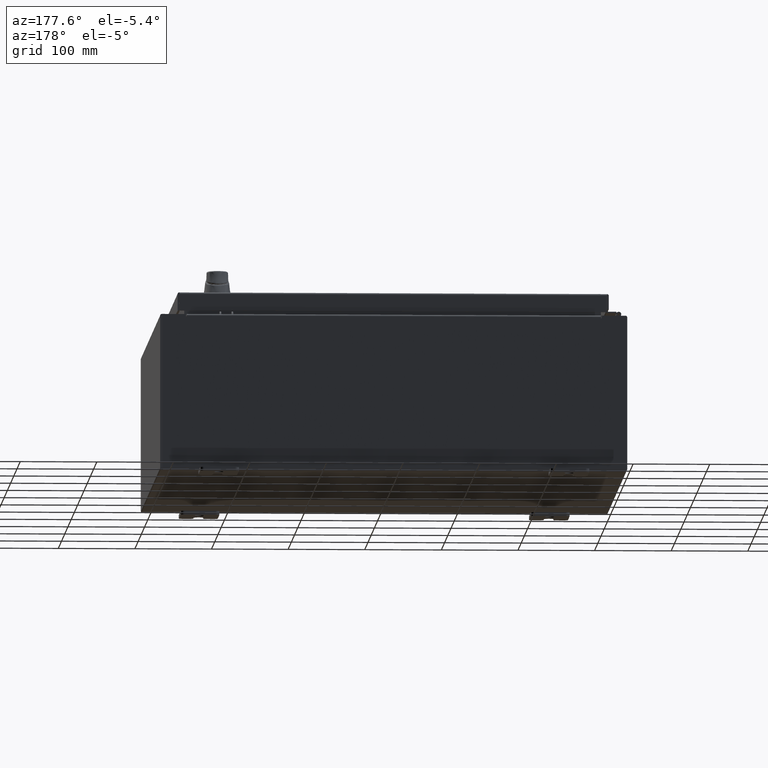
[diagram: clean part render]
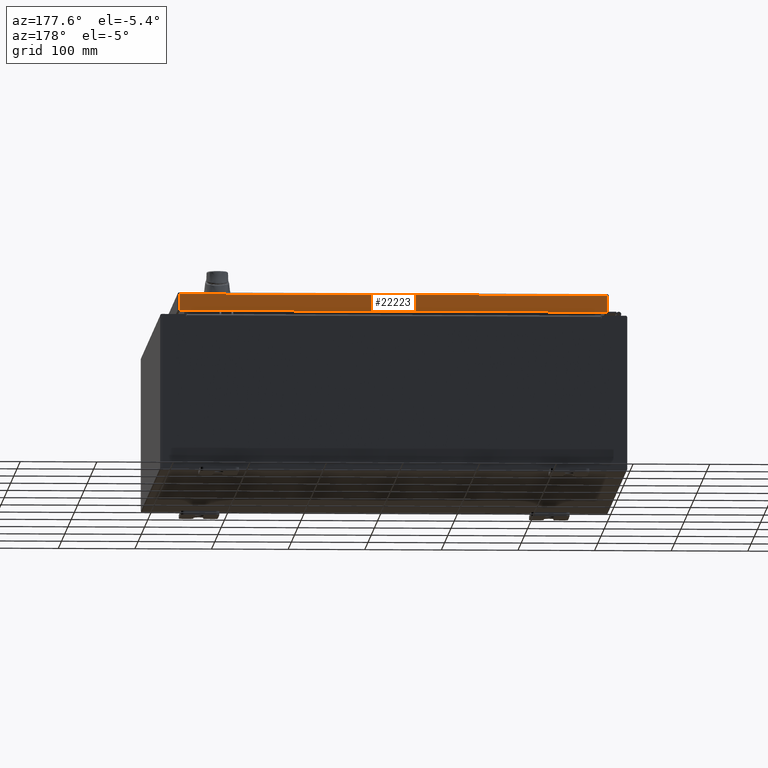
[diagram: same view with one face highlighted and labeled with its STEP entity id]
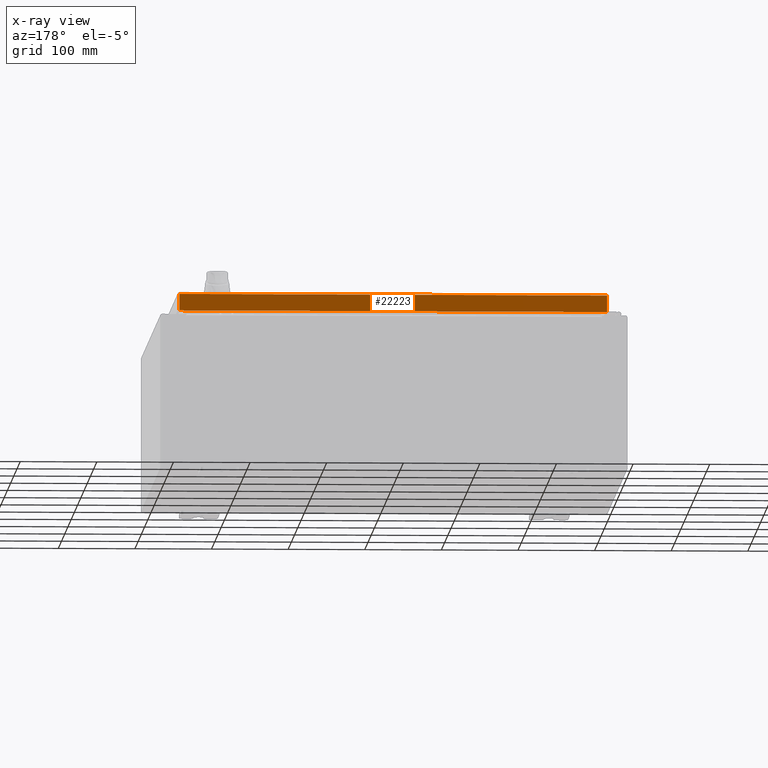
[diagram: x-ray of the same camera — body ghosted, the highlighted face saturated]
A machine part, auxiliary view. The second image highlights one B-rep face of the part: STEP entity #22223.
The next image is the same camera in x-ray: the body ghosted, the highlighted face saturated — about 0% of this face is hidden behind the body in this view.
In plain terms, the highlighted planar face has unit normal (0, -1, -0).
Its self-contained STEP definition (entity closure, byte-faithful):
#2176 = VECTOR ( 'NONE', #84805, 39.37007874015748100 ) ;
#6516 = PLANE ( 'NONE',  #50167 ) ;
#13907 = CARTESIAN_POINT ( 'NONE',  ( -10.98915786437626900, 11.09399999999999900, -0.9377000000000025300 ) ) ;
#15341 = CARTESIAN_POINT ( 'NONE',  ( -3.464089127225218900E-030, 11.09399999999999800, 2.835548029954458900E-014 ) ) ;
#17746 = LINE ( 'NONE', #32056, #20443 ) ;
#20443 = VECTOR ( 'NONE', #75712, 39.37007874015748100 ) ;
#20702 = EDGE_LOOP ( 'NONE', ( #104102, #98446, #90808, #96950 ) ) ;
#22223 = ADVANCED_FACE ( 'NONE', ( #103851 ), #6516, .F. ) ;
#22537 = DIRECTION ( 'NONE',  ( 0.0000000000000000000, 2.532419924601858200E-015, -1.000000000000000000 ) ) ;
#25528 = LINE ( 'NONE', #92839, #2176 ) ;
#32056 = CARTESIAN_POINT ( 'NONE',  ( -11.07800000000000300, 11.09399999999999900, -0.9377000000000025300 ) ) ;
#36529 = VERTEX_POINT ( 'NONE', #46957 ) ;
#38197 = CARTESIAN_POINT ( 'NONE',  ( -11.07800000000000300, 11.09399999999999800, -0.08770000000000008300 ) ) ;
#39837 = CARTESIAN_POINT ( 'NONE',  ( 10.98915786437626500, 11.09399999999999800, 2.835548029954458900E-014 ) ) ;
#46613 = VECTOR ( 'NONE', #22537, 39.37007874015748100 ) ;
#46957 = CARTESIAN_POINT ( 'NONE',  ( 10.98915786437626500, 11.09399999999999900, -0.9376999999999997600 ) ) ;
#46985 = DIRECTION ( 'NONE',  ( -1.000000000000000000, -3.122488847327583000E-031, -7.817847125977018100E-046 ) ) ;
#48717 = VERTEX_POINT ( 'NONE', #53980 ) ;
#49830 = LINE ( 'NONE', #38197, #93724 ) ;
#50167 = AXIS2_PLACEMENT_3D ( 'NONE', #15341, #65956, #76681 ) ;
#53980 = CARTESIAN_POINT ( 'NONE',  ( 10.98915786437626500, 11.09399999999999800, -0.08770000000000008300 ) ) ;
#58450 = VERTEX_POINT ( 'NONE', #13907 ) ;
#65956 = DIRECTION ( 'NONE',  ( 3.122488847327582500E-031, -1.000000000000000000, -2.532419924601858200E-015 ) ) ;
#69939 = LINE ( 'NONE', #39837, #46613 ) ;
#73853 = EDGE_CURVE ( 'NONE', #48717, #110625, #49830, .T. ) ;
#75712 = DIRECTION ( 'NONE',  ( 1.000000000000000000, -4.379057701015054300E-047, 1.233005954894504400E-016 ) ) ;
#76681 = DIRECTION ( 'NONE',  ( 0.0000000000000000000, 2.532419924601858200E-015, -1.000000000000000000 ) ) ;
#81202 = CARTESIAN_POINT ( 'NONE',  ( -10.98915786437626900, 11.09399999999999800, -0.08770000000000008300 ) ) ;
#84805 = DIRECTION ( 'NONE',  ( -0.0000000000000000000, 2.532419924601858200E-015, -1.000000000000000000 ) ) ;
#86836 = EDGE_CURVE ( 'NONE', #48717, #36529, #69939, .T. ) ;
#89346 = EDGE_CURVE ( 'NONE', #58450, #36529, #17746, .T. ) ;
#90808 = ORIENTED_EDGE ( 'NONE', *, *, #89346, .F. ) ;
#92839 = CARTESIAN_POINT ( 'NONE',  ( -10.98915786437626900, 11.09399999999999800, -0.07469999999999980800 ) ) ;
#93724 = VECTOR ( 'NONE', #46985, 39.37007874015748100 ) ;
#96950 = ORIENTED_EDGE ( 'NONE', *, *, #109953, .F. ) ;
#98446 = ORIENTED_EDGE ( 'NONE', *, *, #86836, .T. ) ;
#103851 = FACE_OUTER_BOUND ( 'NONE', #20702, .T. ) ;
#104102 = ORIENTED_EDGE ( 'NONE', *, *, #73853, .F. ) ;
#109953 = EDGE_CURVE ( 'NONE', #110625, #58450, #25528, .T. ) ;
#110625 = VERTEX_POINT ( 'NONE', #81202 ) ;